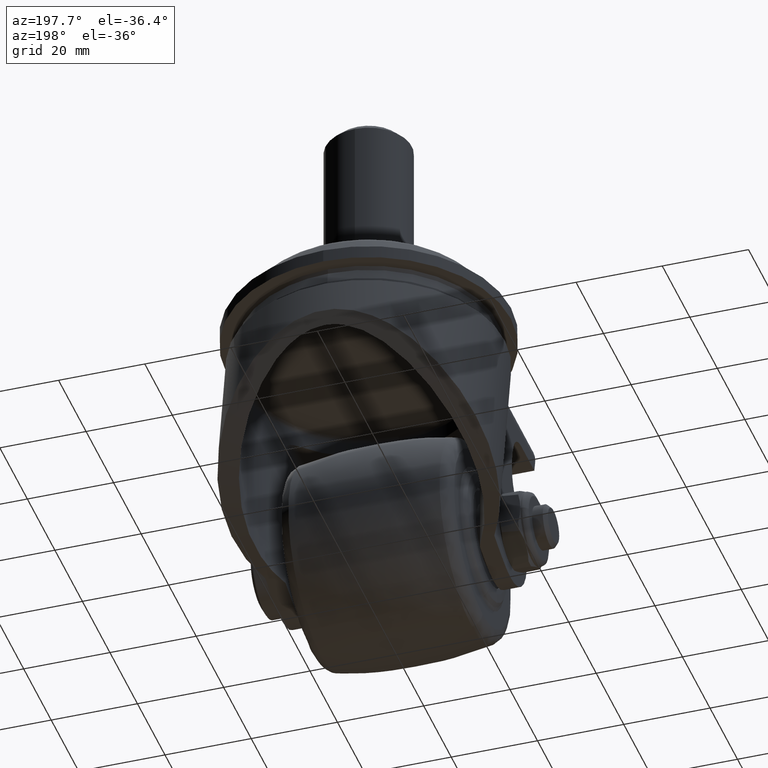
[diagram: clean part render]
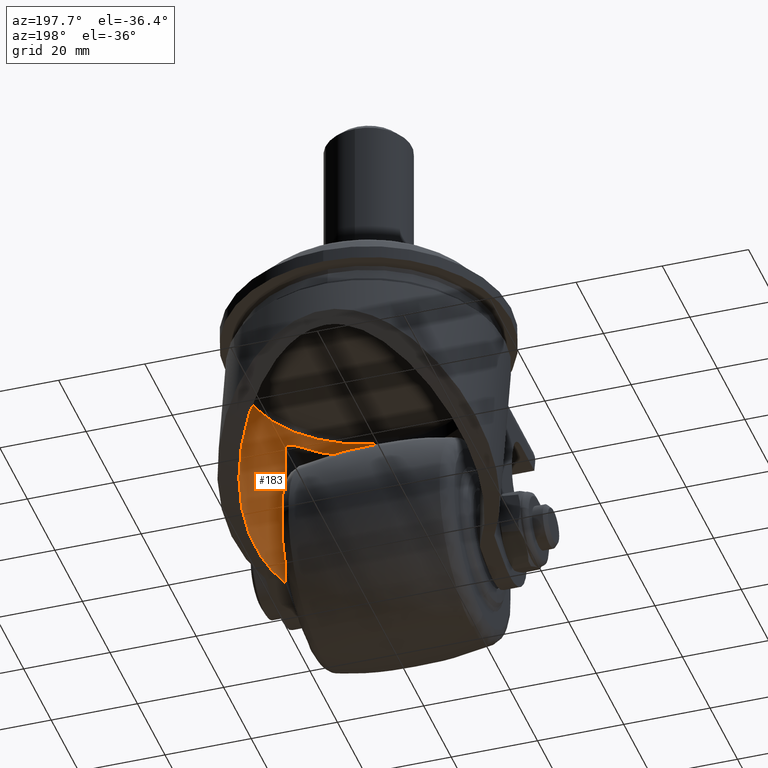
[diagram: same view with one face highlighted and labeled with its STEP entity id]
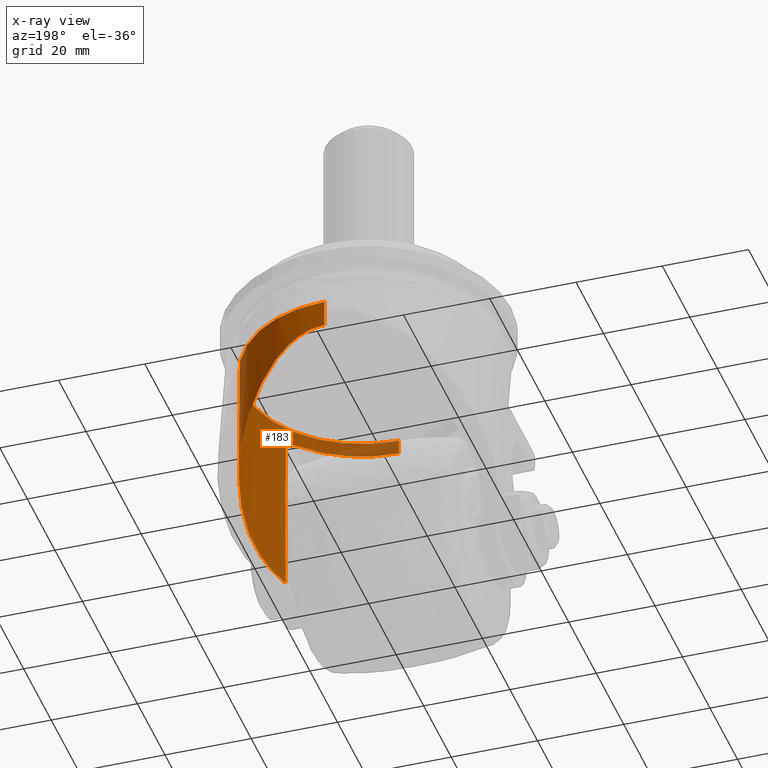
[diagram: x-ray of the same camera — body ghosted, the highlighted face saturated]
A machine part, auxiliary view. The second image highlights one B-rep face of the part: STEP entity #183.
The next image is the same camera in x-ray: the body ghosted, the highlighted face saturated — about 5% of this face is hidden behind the body in this view.
In plain terms, the highlighted cylindrical surface (partial cylindrical patch) has radius 27.15 mm, axis along (0, 0, 1).
Its self-contained STEP definition (entity closure, byte-faithful):
#183=ADVANCED_FACE('',(#1000),#999,.F.);
#999=CYLINDRICAL_SURFACE('',#2439,2.71500000000E+01);
#1000=FACE_OUTER_BOUND('',#2440,.T.);
#2436=CARTESIAN_POINT('',(0.00000000000E+00,-7.00000000000E+01,-5.00000000000E+00));
#2437=DIRECTION('',(-0.00000000000E+00,1.00000000000E+00,-0.00000000000E+00));
#2438=DIRECTION('',(-0.00000000000E+00,-0.00000000000E+00,1.00000000000E+00));
#2439=AXIS2_PLACEMENT_3D('',#2436,#2437,#2438);
#2440=EDGE_LOOP('',(#4002,#4003,#4004,#4005,#4006,#4007,#4008));
#4002=ORIENTED_EDGE('',*,*,#4490,.T.);
#4003=ORIENTED_EDGE('',*,*,#4440,.F.);
#4004=ORIENTED_EDGE('',*,*,#4437,.F.);
#4005=ORIENTED_EDGE('',*,*,#4541,.F.);
#4006=ORIENTED_EDGE('',*,*,#4591,.T.);
#4007=ORIENTED_EDGE('',*,*,#4592,.F.);
#4008=ORIENTED_EDGE('',*,*,#4593,.F.);
#4437=EDGE_CURVE('',#5043,#5050,#5051,.T.);
#4440=EDGE_CURVE('',#5050,#5070,#5071,.T.);
#4490=EDGE_CURVE('',#5413,#5070,#5414,.T.);
#4541=EDGE_CURVE('',#5741,#5043,#5748,.T.);
#4591=EDGE_CURVE('',#5741,#6071,#6072,.T.);
#4592=EDGE_CURVE('',#6078,#6071,#6079,.T.);
#4593=EDGE_CURVE('',#5413,#6078,#6085,.T.);
#5043=VERTEX_POINT('',#7436);
#5050=VERTEX_POINT('',#7440);
#5051=(BOUNDED_CURVE() B_SPLINE_CURVE(3,(#7441,#7442,#7443,#7444,#7445,#7446,#7447,#7448,#7449,#7450,#7451,#7452,#7453,#7454,#7455,#7456),.UNSPECIFIED.,.F.,.F.) B_SPLINE_CURVE_WITH_KNOTS((4,2,2,2,2,2,2,4),(1.63653485417E-17,1.03868307076E-03,2.07736614152E-03,2.59670767690E-03,3.11604921228E-03,3.63539074766E-03,3.89506151535E-03,4.15473228304E-03),.UNSPECIFIED.) CURVE() GEOMETRIC_REPRESENTATION_ITEM() RATIONAL_B_SPLINE_CURVE((1.00000000000E+00,1.00000000000E+00,1.00000000000E+00,1.00000000000E+00,1.00000000000E+00,1.00000000000E+00,1.00000000000E+00,1.00000000000E+00,1.00000000000E+00,1.00000000000E+00,1.00000000000E+00,1.00000000000E+00,1.00000000000E+00,1.00000000000E+00,1.00000000000E+00,1.00000000000E+00)) REPRESENTATION_ITEM('') );
#5070=VERTEX_POINT('',#7475);
#5071=LINE('',#7476,#7477);
#5413=VERTEX_POINT('',#7721);
#5414=(BOUNDED_CURVE() B_SPLINE_CURVE(3,(#7722,#7723,#7724,#7725,#7726,#7727,#7728,#7729,#7730,#7731,#7732,#7733,#7734,#7735,#7736,#7737,#7738,#7739,#7740,#7741,#7742,#7743,#7744,#7745,#7746,#7747,#7748,#7749,#7750,#7751,#7752,#7753,#7754,#7755,#7756,#7757,#7758,#7759,#7760,#7761,#7762,#7763,#7764,#7765,#7766,#7767,#7768,#7769),.UNSPECIFIED.,.F.,.F.) B_SPLINE_CURVE_WITH_KNOTS((4,2,2,2,2,2,2,2,2,2,2,2,2,2,2,2,2,2,2,2,2,2,2,4),(7.93225051012E-02,7.93476082552E-02,8.15220144841E-02,8.26092175985E-02,8.36964207130E-02,8.80452331707E-02,9.02196393996E-02,9.23940456284E-02,9.67428580862E-02,1.01091670544E-01,1.05440483002E-01,1.09789295459E-01,1.14138107917E-01,1.16312514146E-01,1.18486920375E-01,1.22835732833E-01,1.27184545290E-01,1.29358951519E-01,1.31533357748E-01,1.35882170206E-01,1.40230982664E-01,1.42405388892E-01,1.44579795121E-01,1.48928607579E-01),.UNSPECIFIED.) CURVE() GEOMETRIC_REPRESENTATION_ITEM() RATIONAL_B_SPLINE_CURVE((1.00000000000E+00,1.00000000000E+00,1.00000000000E+00,1.00000000000E+00,1.00000000000E+00,1.00000000000E+00,1.00000000000E+00,1.00000000000E+00,1.00000000000E+00,1.00000000000E+00,1.00000000000E+00,1.00000000000E+00,1.00000000000E+00,1.00000000000E+00,1.00000000000E+00,1.00000000000E+00,1.00000000000E+00,1.00000000000E+00,1.00000000000E+00,1.00000000000E+00,1.00000000000E+00,1.00000000000E+00,1.00000000000E+00,1.00000000000E+00,1.00000000000E+00,1.00000000000E+00,1.00000000000E+00,1.00000000000E+00,1.00000000000E+00,1.00000000000E+00,1.00000000000E+00,1.00000000000E+00,1.00000000000E+00,1.00000000000E+00,1.00000000000E+00,1.00000000000E+00,1.00000000000E+00,1.00000000000E+00,1.00000000000E+00,1.00000000000E+00,1.00000000000E+00,1.00000000000E+00,1.00000000000E+00,1.00000000000E+00,1.00000000000E+00,1.00000000000E+00,1.00000000000E+00,1.00000000000E+00)) REPRESENTATION_ITEM('') );
#5741=VERTEX_POINT('',#8147);
#5748=CIRCLE('',#8155,2.71500000000E+01);
#6071=VERTEX_POINT('',#8423);
#6072=(BOUNDED_CURVE() B_SPLINE_CURVE(1,(#8424,#8425),.UNSPECIFIED.,.F.,.F.) B_SPLINE_CURVE_WITH_KNOTS((2,2),(8.48017633706E-01,9.16666666031E-01),.UNSPECIFIED.) CURVE() GEOMETRIC_REPRESENTATION_ITEM() RATIONAL_B_SPLINE_CURVE((1.00000000000E+00,1.00000000000E+00)) REPRESENTATION_ITEM('') );
#6078=VERTEX_POINT('',#8426);
#6079=CIRCLE('',#8430,2.71500000000E+01);
#6085=(BOUNDED_CURVE() B_SPLINE_CURVE(1,(#8431,#8432),.UNSPECIFIED.,.F.,.F.) B_SPLINE_CURVE_WITH_KNOTS((2,2),(7.91001967839E-01,9.16666666667E-01),.UNSPECIFIED.) CURVE() GEOMETRIC_REPRESENTATION_ITEM() RATIONAL_B_SPLINE_CURVE((7.50000000000E-01,7.50000000000E-01)) REPRESENTATION_ITEM('') );
#7436=CARTESIAN_POINT('',(2.05000000000E+01,-2.45000000000E+01,1.28009128979E+01));
#7440=CARTESIAN_POINT('',(2.25000000000E+01,-2.65000000000E+01,1.01944891326E+01));
#7441=CARTESIAN_POINT('',(2.05000000000E+01,-2.45000000000E+01,1.28009128979E+01));
#7442=CARTESIAN_POINT('',(2.07303058929E+01,-2.45000000000E+01,1.25356865676E+01));
#7443=CARTESIAN_POINT('',(2.09510731448E+01,-2.45386059774E+01,1.22710641679E+01));
#7444=CARTESIAN_POINT('',(2.13752320666E+01,-2.46876804025E+01,1.17432546869E+01));
#7445=CARTESIAN_POINT('',(2.15807366143E+01,-2.47998721226E+01,1.14770192536E+01));
#7446=CARTESIAN_POINT('',(2.18611721264E+01,-2.50296881115E+01,1.11008110769E+01));
#7447=CARTESIAN_POINT('',(2.19504126895E+01,-2.51166865725E+01,1.09788193793E+01));
#7448=CARTESIAN_POINT('',(2.21188732837E+01,-2.53182630158E+01,1.07448001149E+01));
#7449=CARTESIAN_POINT('',(2.21965123744E+01,-2.54309221093E+01,1.06349476340E+01));
#7450=CARTESIAN_POINT('',(2.23331350127E+01,-2.56871668081E+01,1.04391654439E+01));
#7451=CARTESIAN_POINT('',(2.23921440155E+01,-2.58315845594E+01,1.03531725943E+01));
#7452=CARTESIAN_POINT('',(2.24549267096E+01,-2.60698737345E+01,1.02610663797E+01));
#7453=CARTESIAN_POINT('',(2.24717277445E+01,-2.61540738488E+01,1.02362840349E+01));
#7454=CARTESIAN_POINT('',(2.24941232953E+01,-2.63243654835E+01,1.02032008534E+01));
#7455=CARTESIAN_POINT('',(2.25000000000E+01,-2.64112292470E+01,1.01944891326E+01));
#7456=CARTESIAN_POINT('',(2.25000000000E+01,-2.65000000000E+01,1.01944891326E+01));
#7475=CARTESIAN_POINT('',(2.25000000000E+01,-6.34866387430E+01,1.01944891326E+01));
#7476=CARTESIAN_POINT('',(2.25000000000E+01,-2.65000000000E+01,1.01944891326E+01));
#7477=VECTOR('',#7478,3.69866387430E+01);
#7478=DIRECTION('',(0.00000000000E+00,-1.00000000000E+00,0.00000000000E+00));
#7721=CARTESIAN_POINT('',(-8.08290459103E-06,-2.74068881136E+01,-3.21500000054E+01));
#7722=CARTESIAN_POINT('',(-8.08290459107E-06,-2.74068881136E+01,-3.21500000054E+01));
#7723=CARTESIAN_POINT('',(8.40526949132E-03,-2.74068881065E+01,-3.21500000044E+01));
#7724=CARTESIAN_POINT('',(1.68179371858E-02,-2.74068950921E+01,-3.21499960943E+01));
#7725=CARTESIAN_POINT('',(7.53866208351E-01,-2.74081195670E+01,-3.21493111706E+01));
#7726=CARTESIAN_POINT('',(1.47736746894E+00,-2.74617966137E+01,-3.21193593753E+01));
#7727=CARTESIAN_POINT('',(2.55524796345E+00,-2.76173371393E+01,-3.20318913459E+01));
#7728=CARTESIAN_POINT('',(2.91331300029E+00,-2.76816811926E+01,-3.19956354676E+01));
#7729=CARTESIAN_POINT('',(3.62704160473E+00,-2.78346827009E+01,-3.19090374434E+01));
#7730=CARTESIAN_POINT('',(3.98392157655E+00,-2.79237610089E+01,-3.18584528943E+01));
#7731=CARTESIAN_POINT('',(5.73336522845E+00,-2.84191493087E+01,-3.15755713241E+01));
#7732=CARTESIAN_POINT('',(7.04215395234E+00,-2.89756562109E+01,-3.12533964016E+01));
#7733=CARTESIAN_POINT('',(8.91018025308E+00,-2.99694989513E+01,-3.06546048807E+01));
#7734=CARTESIAN_POINT('',(9.51816483169E+00,-3.03289907813E+01,-3.04346696692E+01));
#7735=CARTESIAN_POINT('',(1.06854633348E+01,-3.10788517316E+01,-2.99667530181E+01));
#7736=CARTESIAN_POINT('',(1.12477101166E+01,-3.14706354429E+01,-2.97179459562E+01));
#7737=CARTESIAN_POINT('',(1.28810340244E+01,-3.26852988321E+01,-2.89303740697E+01));
#7738=CARTESIAN_POINT('',(1.38993459014E+01,-3.35468821224E+01,-2.83507677173E+01));
#7739=CARTESIAN_POINT('',(1.58278149145E+01,-3.53368147833E+01,-2.70891476636E+01));
#7740=CARTESIAN_POINT('',(1.67402281524E+01,-3.62690563009E+01,-2.64039996251E+01));
#7741=CARTESIAN_POINT('',(1.84394097413E+01,-3.81430943124E+01,-2.49588227843E+01));
#7742=CARTESIAN_POINT('',(1.92307614736E+01,-3.90890204878E+01,-2.41961761047E+01));
#7743=CARTESIAN_POINT('',(2.07105630765E+01,-4.09872650493E+01,-2.25894269648E+01));
#7744=CARTESIAN_POINT('',(2.13988803593E+01,-4.19396716871E+01,-2.17453109659E+01));
#7745=CARTESIAN_POINT('',(2.26758954952E+01,-4.38440729670E+01,-1.99706807949E+01));
#7746=CARTESIAN_POINT('',(2.32645678379E+01,-4.47961069031E+01,-1.90401895114E+01));
#7747=CARTESIAN_POINT('',(2.40696530047E+01,-4.62206251246E+01,-1.75732032030E+01));
#7748=CARTESIAN_POINT('',(2.43237253662E+01,-4.66927856395E+01,-1.70744151407E+01));
#7749=CARTESIAN_POINT('',(2.48002075960E+01,-4.76258398172E+01,-1.60627672791E+01));
#7750=CARTESIAN_POINT('',(2.50231068144E+01,-4.80875947342E+01,-1.55490250074E+01));
#7751=CARTESIAN_POINT('',(2.56452574832E+01,-4.94581205104E+01,-1.39835673104E+01));
#7752=CARTESIAN_POINT('',(2.59981866154E+01,-5.03521481701E+01,-1.29076780832E+01));
#7753=CARTESIAN_POINT('',(2.65723191530E+01,-5.20988516289E+01,-1.06876123975E+01));
#7754=CARTESIAN_POINT('',(2.67935906651E+01,-5.29515343955E+01,-9.54345979538E+00));
#7755=CARTESIAN_POINT('',(2.70147159667E+01,-5.41980711857E+01,-7.77162013091E+00));
#7756=CARTESIAN_POINT('',(2.70698927573E+01,-5.46081686815E+01,-7.17171999683E+00));
#7757=CARTESIAN_POINT('',(2.71401644513E+01,-5.54172793254E+01,-5.95233145054E+00));
#7758=CARTESIAN_POINT('',(2.71550641295E+01,-5.58166409878E+01,-5.33211326404E+00));
#7759=CARTESIAN_POINT('',(2.71352705053E+01,-5.69797210808E+01,-3.47002516741E+00));
#7760=CARTESIAN_POINT('',(2.70371792891E+01,-5.77146616510E+01,-2.21759789209E+00));
#7761=CARTESIAN_POINT('',(2.66570196670E+01,-5.91060345886E+01,3.06046350234E-01));
#7762=CARTESIAN_POINT('',(2.63750959514E+01,-5.97624623654E+01,1.57728572173E+00));
#7763=CARTESIAN_POINT('',(2.57954106008E+01,-6.06893720488E+01,3.49501385617E+00));
#7764=CARTESIAN_POINT('',(2.55770204651E+01,-6.09866168796E+01,4.13185504810E+00));
#7765=CARTESIAN_POINT('',(2.50935456403E+01,-6.15530847626E+01,5.38694948896E+00));
#7766=CARTESIAN_POINT('',(2.48278788130E+01,-6.18232687234E+01,6.00718203292E+00));
#7767=CARTESIAN_POINT('',(2.39579051452E+01,-6.25969777474E+01,7.84436731379E+00));
#7768=CARTESIAN_POINT('',(2.32810028532E+01,-6.30637265815E+01,9.03798008223E+00));
#7769=CARTESIAN_POINT('',(2.25000000000E+01,-6.34866387430E+01,1.01944891326E+01));
#8147=CARTESIAN_POINT('',(-2.14581128972E-15,-2.45000000000E+01,2.21500000000E+01));
#8152=CARTESIAN_POINT('',(0.00000000000E+00,-2.45000000000E+01,-5.00000000000E+00));
#8153=DIRECTION('',(0.00000000000E+00,1.00000000000E+00,-0.00000000000E+00));
#8154=DIRECTION('',(7.55064456722E-01,0.00000000000E+00,6.55650567143E-01));
#8155=AXIS2_PLACEMENT_3D('',#8152,#8153,#8154);
#8423=CARTESIAN_POINT('',(1.18423789293E-15,-2.10000000000E+01,2.21500000000E+01));
#8424=CARTESIAN_POINT('',(0.00000000000E+00,-2.44999999961E+01,2.21500000000E+01));
#8425=CARTESIAN_POINT('',(0.00000000000E+00,-2.10000000324E+01,2.21500000000E+01));
#8426=CARTESIAN_POINT('',(0.00000000000E+00,-2.10000000000E+01,-3.21500000000E+01));
#8427=CARTESIAN_POINT('',(0.00000000000E+00,-2.10000000000E+01,-5.00000000000E+00));
#8428=DIRECTION('',(0.00000000000E+00,-1.00000000000E+00,-0.00000000000E+00));
#8429=DIRECTION('',(-1.22460635382E-16,0.00000000000E+00,-1.00000000000E+00));
#8430=AXIS2_PLACEMENT_3D('',#8427,#8428,#8429);
#8431=CARTESIAN_POINT('',(0.00000000000E+00,-2.74068847942E+01,-3.21500000000E+01));
#8432=CARTESIAN_POINT('',(0.00000000000E+00,-2.10000000000E+01,-3.21500000000E+01));